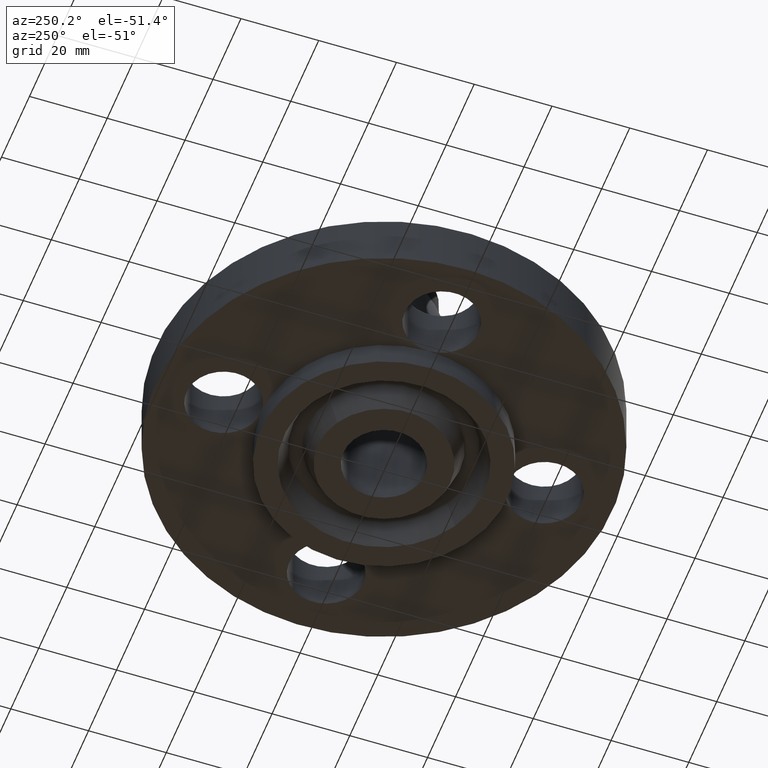
[diagram: clean part render]
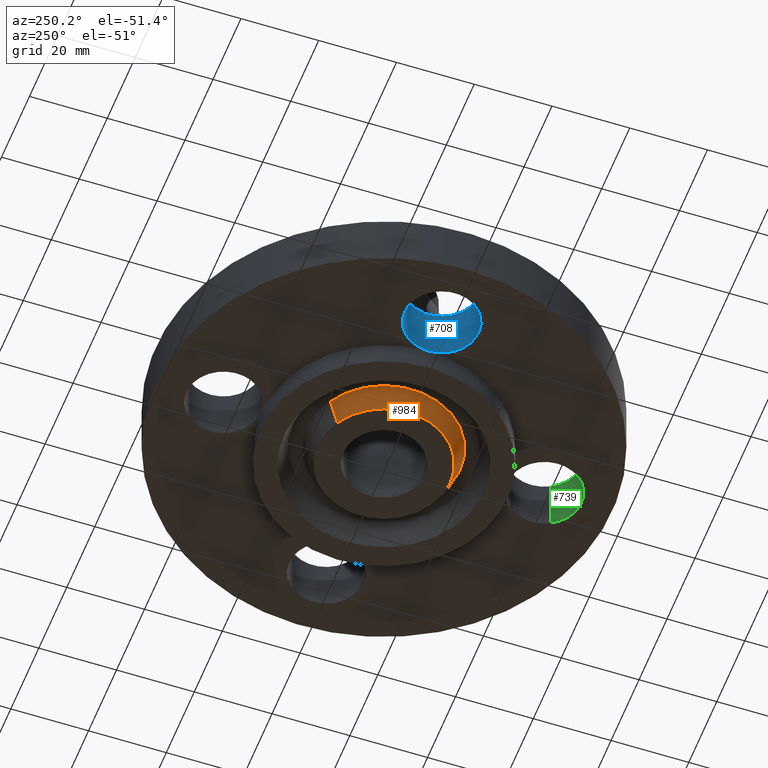
[diagram: same view with three faces highlighted in distinct colors, each labeled with its STEP entity id]
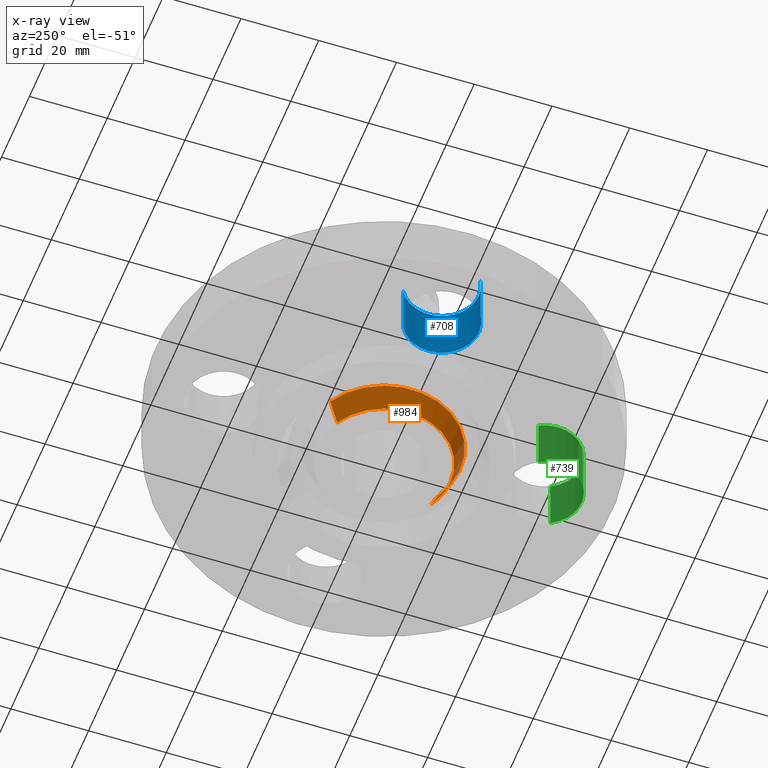
[diagram: x-ray of the same camera — body ghosted, the three highlighted faces saturated]
A machine part, auxiliary view with three faces highlighted in distinct colors.
The next image is the same camera in x-ray (body ghosted, the three faces saturated) — at least one of them is partly hidden behind the body in this view.
Their STEP definitions:

[orange] entity #984 — the highlighted conical surface has half-angle 23 deg.
#792=AXIS2_PLACEMENT_3D('Circle Axis2P3D',#790,#791,$) ;
#946=AXIS2_PLACEMENT_3D('Circle Axis2P3D',#944,#945,$) ;
#959=AXIS2_PLACEMENT_3D('Cone Axis2P3D',#956,#957,#958) ;
#785=CARTESIAN_POINT('Vertex',(-0.322173961943,0.589735481593,-0.250000000001)) ;
#787=CARTESIAN_POINT('Vertex',(0.322173961943,-0.589735481593,-0.250000000001)) ;
#790=CARTESIAN_POINT('Axis2P3D Location',(-2.09805925913E-016,0.,-0.250000000001)) ;
#922=CARTESIAN_POINT('Vertex',(0.369206329292,-0.675827652547,-0.0188873350169)) ;
#929=CARTESIAN_POINT('Vertex',(-0.369206329292,0.675827652547,-0.0188873350169)) ;
#944=CARTESIAN_POINT('Axis2P3D Location',(0.,0.,-0.0188873350169)) ;
#956=CARTESIAN_POINT('Axis2P3D Location',(0.,0.,-0.310000000001)) ;
#961=CARTESIAN_POINT('Line Origine',(-0.345690145618,0.63278156707,-0.134443667509)) ;
#966=CARTESIAN_POINT('Line Origine',(0.345690145618,-0.63278156707,-0.134443667509)) ;
#791=DIRECTION('Axis2P3D Direction',(0.,0.,-0.0393700787402)) ;
#945=DIRECTION('Axis2P3D Direction',(0.,0.,0.0393700787402)) ;
#957=DIRECTION('Axis2P3D Direction',(0.,0.,0.0393700787402)) ;
#958=DIRECTION('Axis2P3D XDirection',(-0.0188750212049,0.0345504945626,0.)) ;
#962=DIRECTION('Vector Direction',(-0.00737505833565,0.0134999537303,0.0362403485611)) ;
#967=DIRECTION('Vector Direction',(0.00737505833565,-0.0134999537303,0.0362403485611)) ;
#963=VECTOR('Line Direction',#962,0.0393700787402) ;
#968=VECTOR('Line Direction',#967,0.0393700787402) ;
#979=ORIENTED_EDGE('',*,*,#970,.F.) ;
#980=ORIENTED_EDGE('',*,*,#948,.F.) ;
#981=ORIENTED_EDGE('',*,*,#965,.T.) ;
#982=ORIENTED_EDGE('',*,*,#794,.F.) ;
#984=ADVANCED_FACE('PartBody',(#983),#960,.T.) ;
#793=CIRCLE('generated circle',#792,0.672000000003) ;
#947=CIRCLE('generated circle',#946,0.770101505996) ;
#960=CONICAL_SURFACE('Cone',#959,0.64653151103,0.401425727959) ;
#794=EDGE_CURVE('',#788,#786,#793,.T.) ;
#948=EDGE_CURVE('',#930,#923,#947,.T.) ;
#965=EDGE_CURVE('',#930,#786,#964,.F.) ;
#970=EDGE_CURVE('',#923,#788,#969,.F.) ;
#978=EDGE_LOOP('',(#979,#980,#981,#982)) ;
#983=FACE_OUTER_BOUND('',#978,.T.) ;
#964=LINE('Line',#961,#963) ;
#969=LINE('Line',#966,#968) ;
#786=VERTEX_POINT('',#785) ;
#788=VERTEX_POINT('',#787) ;
#923=VERTEX_POINT('',#922) ;
#930=VERTEX_POINT('',#929) ;

[blue] entity #708 — the highlighted cylindrical surface (partial cylindrical patch) has radius 9.525 mm, axis along (0, 0, -1).
#583=AXIS2_PLACEMENT_3D('Circle Axis2P3D',#581,#582,$) ;
#597=AXIS2_PLACEMENT_3D('Circle Axis2P3D',#595,#596,$) ;
#668=AXIS2_PLACEMENT_3D('Cylinder Axis2P3D',#665,#666,#667) ;
#698=AXIS2_PLACEMENT_3D('Circle Axis2P3D',#696,#697,$) ;
#472=CARTESIAN_POINT('Vertex',(-1.25000000001,-1.39870617276E-016,0.)) ;
#581=CARTESIAN_POINT('Axis2P3D Location',(-1.62500000001,-2.79741234551E-016,0.)) ;
#585=CARTESIAN_POINT('Vertex',(-1.44521542303,0.32909346071,-6.99353086378E-017)) ;
#592=CARTESIAN_POINT('Vertex',(-1.80478457698,-0.32909346071,0.)) ;
#595=CARTESIAN_POINT('Axis2P3D Location',(-1.62500000001,-2.79741234551E-016,0.)) ;
#665=CARTESIAN_POINT('Axis2P3D Location',(-1.62500000001,-2.98507657293E-016,0.556062992128)) ;
#670=CARTESIAN_POINT('Line Origine',(-1.80478457698,-0.32909346071,0.280000000001)) ;
#674=CARTESIAN_POINT('Vertex',(-1.80478457698,-0.32909346071,0.560000000002)) ;
#677=CARTESIAN_POINT('Line Origine',(-1.44521542303,0.32909346071,0.280000000001)) ;
#681=CARTESIAN_POINT('Vertex',(-1.44521542303,0.32909346071,0.560000000002)) ;
#696=CARTESIAN_POINT('Axis2P3D Location',(-1.62500000001,-2.98507657293E-016,0.560000000002)) ;
#582=DIRECTION('Axis2P3D Direction',(0.,0.,-0.0393700787402)) ;
#596=DIRECTION('Axis2P3D Direction',(0.,0.,-0.0393700787402)) ;
#666=DIRECTION('Axis2P3D Direction',(0.,0.,-0.0393700787402)) ;
#667=DIRECTION('Axis2P3D XDirection',(0.0188750212049,0.0345504945626,0.)) ;
#671=DIRECTION('Vector Direction',(0.,0.,-0.0393700787402)) ;
#678=DIRECTION('Vector Direction',(0.,0.,-0.0393700787402)) ;
#697=DIRECTION('Axis2P3D Direction',(0.,0.,-0.0393700787402)) ;
#672=VECTOR('Line Direction',#671,0.0393700787402) ;
#679=VECTOR('Line Direction',#678,0.0393700787402) ;
#702=ORIENTED_EDGE('',*,*,#683,.F.) ;
#703=ORIENTED_EDGE('',*,*,#587,.T.) ;
#704=ORIENTED_EDGE('',*,*,#599,.T.) ;
#705=ORIENTED_EDGE('',*,*,#676,.T.) ;
#706=ORIENTED_EDGE('',*,*,#700,.F.) ;
#708=ADVANCED_FACE('PartBody',(#707),#669,.F.) ;
#584=CIRCLE('generated circle',#583,0.375000000001) ;
#598=CIRCLE('generated circle',#597,0.375000000001) ;
#699=CIRCLE('generated circle',#698,0.375000000001) ;
#669=CYLINDRICAL_SURFACE('generated cylinder',#668,0.375000000001) ;
#587=EDGE_CURVE('',#586,#473,#584,.T.) ;
#599=EDGE_CURVE('',#473,#593,#598,.T.) ;
#676=EDGE_CURVE('',#593,#675,#673,.F.) ;
#683=EDGE_CURVE('',#586,#682,#680,.F.) ;
#700=EDGE_CURVE('',#682,#675,#699,.T.) ;
#701=EDGE_LOOP('',(#702,#703,#704,#705,#706)) ;
#707=FACE_OUTER_BOUND('',#701,.T.) ;
#673=LINE('Line',#670,#672) ;
#680=LINE('Line',#677,#679) ;
#473=VERTEX_POINT('',#472) ;
#586=VERTEX_POINT('',#585) ;
#593=VERTEX_POINT('',#592) ;
#675=VERTEX_POINT('',#674) ;
#682=VERTEX_POINT('',#681) ;

[green] entity #739 — the highlighted cylindrical surface (partial cylindrical patch) has radius 9.525 mm, axis along (-0, 0, -1).
#552=AXIS2_PLACEMENT_3D('Circle Axis2P3D',#550,#551,$) ;
#712=AXIS2_PLACEMENT_3D('Cylinder Axis2P3D',#709,#710,#711) ;
#730=AXIS2_PLACEMENT_3D('Circle Axis2P3D',#728,#729,$) ;
#547=CARTESIAN_POINT('Vertex',(-0.32909346071,-1.44521542303,-6.99353086378E-017)) ;
#550=CARTESIAN_POINT('Axis2P3D Location',(1.39870617276E-016,-1.62500000001,0.)) ;
#554=CARTESIAN_POINT('Vertex',(0.32909346071,-1.80478457698,0.)) ;
#709=CARTESIAN_POINT('Axis2P3D Location',(1.99005104862E-016,-1.62500000001,0.556062992128)) ;
#714=CARTESIAN_POINT('Line Origine',(0.32909346071,-1.80478457698,0.280000000001)) ;
#718=CARTESIAN_POINT('Vertex',(0.32909346071,-1.80478457698,0.560000000002)) ;
#721=CARTESIAN_POINT('Line Origine',(-0.32909346071,-1.44521542303,0.280000000001)) ;
#725=CARTESIAN_POINT('Vertex',(-0.32909346071,-1.44521542303,0.560000000002)) ;
#728=CARTESIAN_POINT('Axis2P3D Location',(1.99005104862E-016,-1.62500000001,0.560000000002)) ;
#551=DIRECTION('Axis2P3D Direction',(0.,0.,-0.0393700787402)) ;
#710=DIRECTION('Axis2P3D Direction',(-0.,0.,-0.0393700787402)) ;
#711=DIRECTION('Axis2P3D XDirection',(-0.0345504945626,0.0188750212049,0.)) ;
#715=DIRECTION('Vector Direction',(0.,0.,-0.0393700787402)) ;
#722=DIRECTION('Vector Direction',(0.,0.,-0.0393700787402)) ;
#729=DIRECTION('Axis2P3D Direction',(-0.,0.,-0.0393700787402)) ;
#716=VECTOR('Line Direction',#715,0.0393700787402) ;
#723=VECTOR('Line Direction',#722,0.0393700787402) ;
#734=ORIENTED_EDGE('',*,*,#720,.F.) ;
#735=ORIENTED_EDGE('',*,*,#556,.T.) ;
#736=ORIENTED_EDGE('',*,*,#727,.T.) ;
#737=ORIENTED_EDGE('',*,*,#732,.F.) ;
#739=ADVANCED_FACE('PartBody',(#738),#713,.F.) ;
#553=CIRCLE('generated circle',#552,0.375000000001) ;
#731=CIRCLE('generated circle',#730,0.375000000001) ;
#713=CYLINDRICAL_SURFACE('generated cylinder',#712,0.375000000001) ;
#556=EDGE_CURVE('',#555,#548,#553,.T.) ;
#720=EDGE_CURVE('',#555,#719,#717,.F.) ;
#727=EDGE_CURVE('',#548,#726,#724,.F.) ;
#732=EDGE_CURVE('',#719,#726,#731,.T.) ;
#733=EDGE_LOOP('',(#734,#735,#736,#737)) ;
#738=FACE_OUTER_BOUND('',#733,.T.) ;
#717=LINE('Line',#714,#716) ;
#724=LINE('Line',#721,#723) ;
#548=VERTEX_POINT('',#547) ;
#555=VERTEX_POINT('',#554) ;
#719=VERTEX_POINT('',#718) ;
#726=VERTEX_POINT('',#725) ;